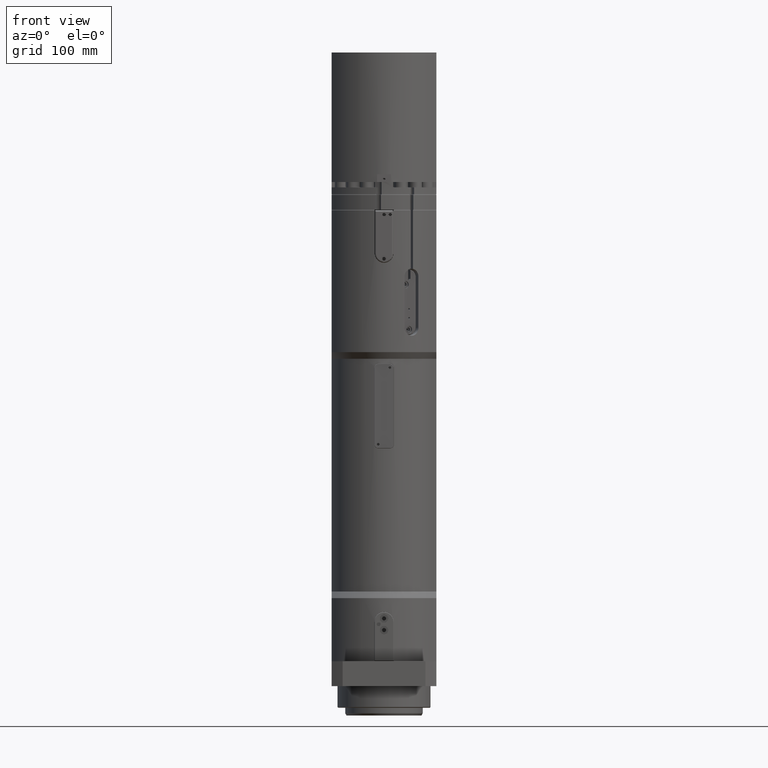
[diagram: clean part render]
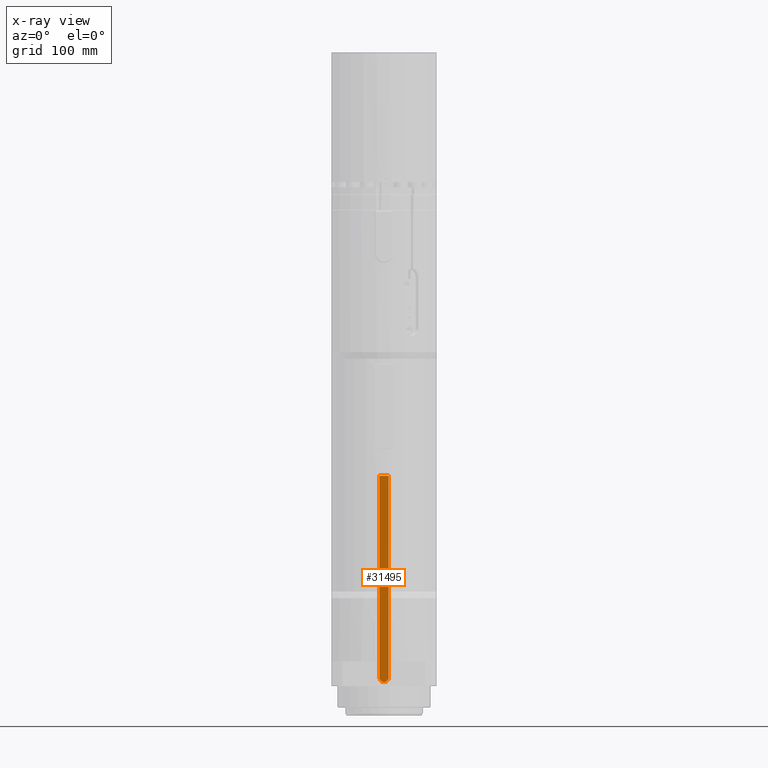
[diagram: x-ray — body ghosted, one internal face saturated and labeled with its STEP entity id]
A machine part, front view, then the same camera in x-ray: the body is ghosted and one INTERNAL B-rep face — a face not visible from any outside direction — is saturated and labeled: STEP entity #31495.
In plain terms, the highlighted planar face has unit normal (-0, 1, 0).
Its self-contained STEP definition (entity closure, byte-faithful):
#1241=PLANE('',#33797);
#3245=LINE('',#55713,#5873);
#3261=LINE('',#55800,#5889);
#3263=LINE('',#55803,#5891);
#5873=VECTOR('',#39643,10.);
#5889=VECTOR('',#39701,10.);
#5891=VECTOR('',#39705,10.);
#8296=FACE_OUTER_BOUND('',#10144,.T.);
#10144=EDGE_LOOP('',(#25386,#25387,#25388,#25389));
#12217=CIRCLE('',#33795,6.);
#14478=VERTEX_POINT('',#55710);
#14479=VERTEX_POINT('',#55712);
#14502=VERTEX_POINT('',#55783);
#14503=VERTEX_POINT('',#55798);
#18283=EDGE_CURVE('',#14479,#14478,#3245,.T.);
#18313=EDGE_CURVE('',#14478,#14502,#12217,.T.);
#18317=EDGE_CURVE('',#14502,#14503,#3261,.T.);
#18319=EDGE_CURVE('',#14479,#14503,#3263,.T.);
#25386=ORIENTED_EDGE('',*,*,#18319,.F.);
#25387=ORIENTED_EDGE('',*,*,#18283,.T.);
#25388=ORIENTED_EDGE('',*,*,#18313,.T.);
#25389=ORIENTED_EDGE('',*,*,#18317,.T.);
#31495=ADVANCED_FACE('',(#8296),#1241,.F.);
#33795=AXIS2_PLACEMENT_3D('',#55785,#39695,#39696);
#33797=AXIS2_PLACEMENT_3D('',#55802,#39703,#39704);
#39643=DIRECTION('',(1.02451450575358E-16,1.54329896837545E-46,-1.));
#39695=DIRECTION('center_axis',(8.54385532973449E-31,-1.,-6.67968596338145E-47));
#39696=DIRECTION('ref_axis',(1.,8.54385532973449E-31,-1.28409404434083E-17));
#39701=DIRECTION('',(-6.82907421253532E-17,-1.25143481741737E-46,1.));
#39703=DIRECTION('center_axis',(-8.54385532973449E-31,1.,6.67968596338145E-47));
#39704=DIRECTION('ref_axis',(-1.28409404434083E-17,5.58257458891928E-47,
-1.));
#39705=DIRECTION('',(1.,8.54385532973449E-31,0.));
#55710=CARTESIAN_POINT('',(-6.,-44.,11.));
#55712=CARTESIAN_POINT('',(-6.00000000000003,-44.,271.));
#55713=CARTESIAN_POINT('',(-6.,-44.,11.));
#55783=CARTESIAN_POINT('',(5.99999999999999,-44.,11.));
#55785=CARTESIAN_POINT('Origin',(-5.37156323409499E-15,-44.,11.));
#55798=CARTESIAN_POINT('',(5.99999999999997,-44.,271.));
#55800=CARTESIAN_POINT('',(5.99999999999997,-44.,271.));
#55802=CARTESIAN_POINT('Origin',(-1.52732257007183E-14,-44.,140.392401450781));
#55803=CARTESIAN_POINT('',(-6.19724020760327E-15,-44.,271.));